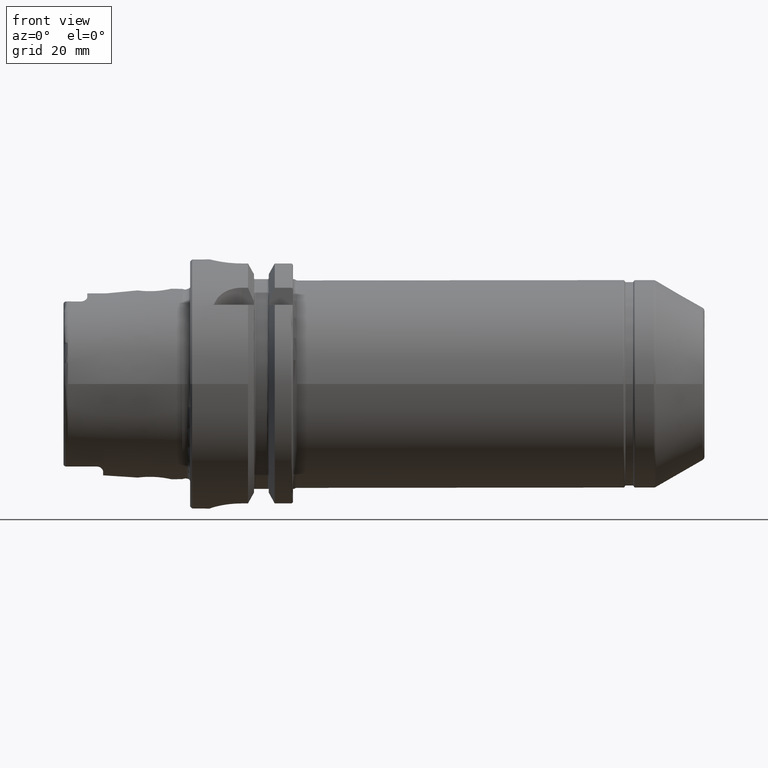
[diagram: clean part render]
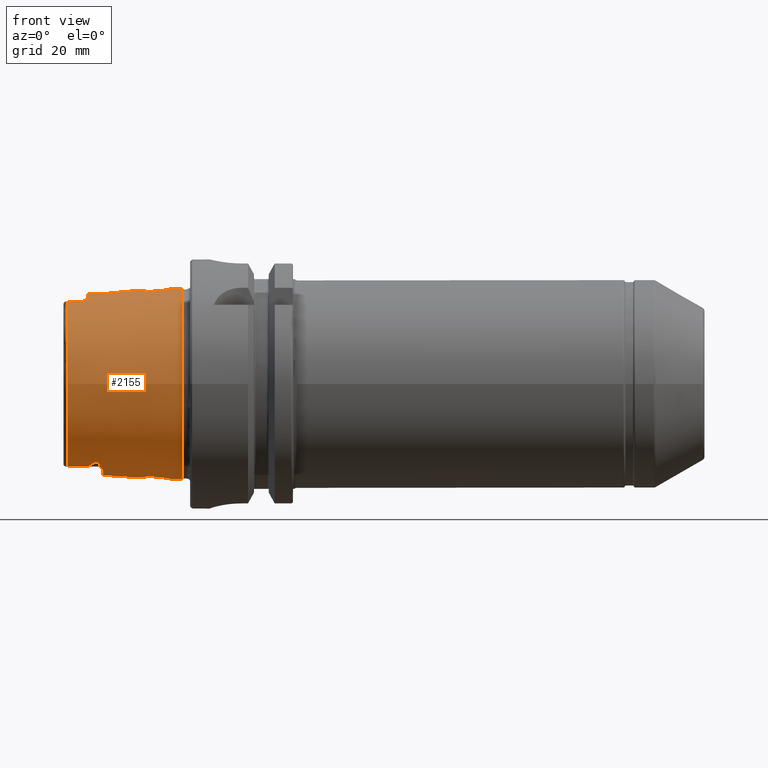
[diagram: same view with one face highlighted and labeled with its STEP entity id]
A machine part, front view. The second image highlights one B-rep face of the part: STEP entity #2155.
In plain terms, the highlighted conical surface has half-angle 2.868 deg.
Its self-contained STEP definition (entity closure, byte-faithful):
#15=(
BOUNDED_CURVE()
B_SPLINE_CURVE(2,(#3690,#3691,#3692),.UNSPECIFIED.,.F.,.F.)
B_SPLINE_CURVE_WITH_KNOTS((3,3),(0.409626932432081,0.704053423593105),
 .UNSPECIFIED.)
CURVE()
GEOMETRIC_REPRESENTATION_ITEM()
RATIONAL_B_SPLINE_CURVE((1.00336468859939,1.00336468859939,1.00162640098087))
REPRESENTATION_ITEM('')
);
#16=(
BOUNDED_CURVE()
B_SPLINE_CURVE(2,(#3757,#3758,#3759),.UNSPECIFIED.,.F.,.F.)
B_SPLINE_CURVE_WITH_KNOTS((3,3),(0.115200441271059,0.409626932432082),
 .UNSPECIFIED.)
CURVE()
GEOMETRIC_REPRESENTATION_ITEM()
RATIONAL_B_SPLINE_CURVE((1.00162640098087,1.00336468859939,1.00336468859939))
REPRESENTATION_ITEM('')
);
#43=B_SPLINE_CURVE_WITH_KNOTS('',3,(#3431,#3432,#3433,#3434,#3435,#3436,
#3437,#3438,#3439,#3440,#3441,#3442,#3443,#3444,#3445,#3446,#3447,#3448),
 .UNSPECIFIED.,.F.,.F.,(4,2,2,2,2,2,2,2,4),(1.51539778880184,1.52261182847659,
1.52982586815134,1.54425394750083,1.60399250706955,1.66373106663827,1.83461413050895,
2.00549719437962,2.0934503680651),.UNSPECIFIED.);
#45=B_SPLINE_CURVE_WITH_KNOTS('',3,(#3479,#3480,#3481,#3482,#3483,#3484,
#3485,#3486),.UNSPECIFIED.,.F.,.F.,(4,2,2,4),(1.77153596711132,1.83492838643131,
2.00584149209106,2.09371558288111),.UNSPECIFIED.);
#46=B_SPLINE_CURVE_WITH_KNOTS('',3,(#3503,#3504,#3505,#3506,#3507,#3508,
#3509,#3510),.UNSPECIFIED.,.F.,.F.,(4,2,2,4),(0.937604543168422,1.02547863395848,
1.19639173961822,1.25978415893822),.UNSPECIFIED.);
#50=B_SPLINE_CURVE_WITH_KNOTS('',3,(#3642,#3643,#3644,#3645,#3646,#3647,
#3648,#3649,#3650,#3651,#3652,#3653,#3654,#3655,#3656,#3657,#3658,#3659,
#3660,#3661,#3662),.UNSPECIFIED.,.T.,.F.,(4,1,1,1,1,1,1,1,1,1,1,1,1,1,1,
1,1,1,4),(-2.26557970640445,-2.10375258451842,-1.94192546263239,-1.86101190168937,
-1.78009834074636,-1.61827121886032,-1.45644409697429,-1.29461697508826,
-1.18673222716424,-1.07884747924022,-1.0249051052782,-0.970962731316194,
-0.755193235468151,-0.647308487544129,-0.485481365658097,-0.404567804715081,
-0.323654243772065,-0.161827121886032,0.),.UNSPECIFIED.);
#51=B_SPLINE_CURVE_WITH_KNOTS('',3,(#3671,#3672,#3673,#3674,#3675,#3676,
#3677,#3678,#3679,#3680,#3681,#3682,#3683,#3684,#3685,#3686,#3687,#3688),
 .UNSPECIFIED.,.F.,.F.,(4,2,2,2,2,2,2,2,4),(0.937345209538582,1.02529838322405,
1.19618144709472,1.36706451096539,1.42680307053412,1.48654163010284,1.50096970945234,
1.50818374912708,1.51539778880183),.UNSPECIFIED.);
#52=B_SPLINE_CURVE_WITH_KNOTS('',3,(#3694,#3695,#3696,#3697,#3698,#3699,
#3700,#3701,#3702,#3703,#3704,#3705,#3706,#3707,#3708,#3709,#3710,#3711),
 .UNSPECIFIED.,.F.,.F.,(4,2,2,2,2,2,2,2,4),(0.,0.0903555875079969,0.135533381261995,
0.180711175015994,0.191679253692351,0.19716329303053,0.202647332368709,
0.208141673454593,0.210684760739668),.UNSPECIFIED.);
#53=B_SPLINE_CURVE_WITH_KNOTS('',3,(#3713,#3714,#3715,#3716,#3717,#3718,
#3719,#3720,#3721,#3722),.UNSPECIFIED.,.F.,.F.,(4,2,2,2,4),(0.278659319230644,
0.333918541832918,0.442805459609059,0.482035165304725,0.500954004489182),
 .UNSPECIFIED.);
#54=B_SPLINE_CURVE_WITH_KNOTS('',3,(#3726,#3727,#3728,#3729,#3730,#3731,
#3732,#3733,#3734,#3735,#3736,#3737),.UNSPECIFIED.,.F.,.F.,(4,2,2,2,2,4),
(0.500954004487676,0.50386398744684,0.528331134037123,0.580812359186529,
0.712749669755937,0.726249722962502),.UNSPECIFIED.);
#55=B_SPLINE_CURVE_WITH_KNOTS('',3,(#3739,#3740,#3741,#3742,#3743,#3744,
#3745,#3746,#3747,#3748,#3749,#3750,#3751,#3752,#3753,#3754,#3755,#3756),
 .UNSPECIFIED.,.F.,.F.,(4,2,2,2,2,2,2,2,4),(0.599581967500703,0.602125054785784,
0.607619395871668,0.613103435209847,0.618587474548027,0.629555553224386,
0.674733346978385,0.719911140732385,0.810266728240384),.UNSPECIFIED.);
#56=B_SPLINE_CURVE_WITH_KNOTS('',3,(#3762,#3763,#3764,#3765,#3766,#3767,
#3768,#3769,#3770,#3771,#3772,#3773,#3774,#3775),.UNSPECIFIED.,.F.,.F.,
(4,2,2,2,2,2,4),(0.612787130114313,0.692070205833102,0.846913877835571,
0.923866042650838,0.97973233720279,1.02631946127952,1.05465853457734),
 .UNSPECIFIED.);
#57=B_SPLINE_CURVE_WITH_KNOTS('',3,(#3778,#3779,#3780,#3781,#3782,#3783,
#3784,#3785,#3786,#3787,#3788,#3789,#3790,#3791),.UNSPECIFIED.,.F.,.F.,
(4,2,2,2,2,2,4),(0.413162960284885,0.443293122422243,0.485069563612126,
0.532728756474865,0.604908335246701,0.737193690325506,0.813919818316776),
 .UNSPECIFIED.);
#58=B_SPLINE_CURVE_WITH_KNOTS('',3,(#3794,#3795,#3796,#3797,#3798,#3799,
#3800,#3801,#3802,#3803,#3804,#3805,#3806,#3807,#3808,#3809,#3810,#3811,
#3812,#3813),.UNSPECIFIED.,.T.,.F.,(4,1,1,1,1,1,1,1,1,1,1,1,1,1,1,1,1,4),
(-2.26557970640445,-2.10375258451842,-1.94192546263239,-1.78009834074636,
-1.61827121886032,-1.45644409697429,-1.37553053603127,-1.29461697508826,
-1.18673222716424,-1.07884747924022,-0.970962731316194,-0.755193235468151,
-0.647308487544129,-0.485481365658097,-0.404567804715081,-0.323654243772065,
-0.161827121886032,0.),.UNSPECIFIED.);
#103=FACE_BOUND('',#363,.T.);
#104=FACE_BOUND('',#364,.T.);
#158=CONICAL_SURFACE('',#2367,23.4974838444284,0.0500583457465973);
#233=FACE_OUTER_BOUND('',#362,.T.);
#362=EDGE_LOOP('',(#1577,#1578,#1579,#1580,#1581,#1582,#1583,#1584,#1585,
#1586,#1587,#1588,#1589,#1590,#1591,#1592,#1593,#1594,#1595,#1596));
#363=EDGE_LOOP('',(#1597));
#364=EDGE_LOOP('',(#1598));
#496=LINE('',#3667,#608);
#608=VECTOR('',#2787,23.4974838444284);
#740=CIRCLE('',#2368,24.2204308617234);
#741=CIRCLE('',#2369,22.7745368271334);
#742=CIRCLE('',#2370,23.2184268537074);
#743=CIRCLE('',#2371,22.7745368271334);
#744=CIRCLE('',#2372,23.0180260521042);
#745=CIRCLE('',#2373,22.7745368271334);
#894=VERTEX_POINT('',#3417);
#895=VERTEX_POINT('',#3430);
#901=VERTEX_POINT('',#3465);
#902=VERTEX_POINT('',#3478);
#908=VERTEX_POINT('',#3500);
#909=VERTEX_POINT('',#3502);
#912=VERTEX_POINT('',#3613);
#915=VERTEX_POINT('',#3664);
#916=VERTEX_POINT('',#3666);
#917=VERTEX_POINT('',#3668);
#918=VERTEX_POINT('',#3670);
#919=VERTEX_POINT('',#3689);
#920=VERTEX_POINT('',#3693);
#921=VERTEX_POINT('',#3712);
#922=VERTEX_POINT('',#3723);
#923=VERTEX_POINT('',#3725);
#924=VERTEX_POINT('',#3738);
#925=VERTEX_POINT('',#3761);
#926=VERTEX_POINT('',#3776);
#927=VERTEX_POINT('',#3793);
#1140=EDGE_CURVE('',#895,#894,#43,.T.);
#1150=EDGE_CURVE('',#902,#901,#45,.T.);
#1158=EDGE_CURVE('',#909,#908,#46,.T.);
#1166=EDGE_CURVE('',#912,#912,#50,.T.);
#1167=EDGE_CURVE('',#915,#915,#740,.T.);
#1168=EDGE_CURVE('',#915,#916,#496,.T.);
#1169=EDGE_CURVE('',#916,#917,#741,.T.);
#1170=EDGE_CURVE('',#917,#918,#51,.T.);
#1171=EDGE_CURVE('',#918,#919,#15,.T.);
#1172=EDGE_CURVE('',#920,#919,#52,.T.);
#1173=EDGE_CURVE('',#921,#920,#53,.T.);
#1174=EDGE_CURVE('',#921,#922,#742,.T.);
#1175=EDGE_CURVE('',#923,#922,#54,.T.);
#1176=EDGE_CURVE('',#924,#923,#55,.T.);
#1177=EDGE_CURVE('',#924,#895,#16,.T.);
#1178=EDGE_CURVE('',#894,#909,#743,.T.);
#1179=EDGE_CURVE('',#925,#908,#56,.T.);
#1180=EDGE_CURVE('',#925,#926,#744,.T.);
#1181=EDGE_CURVE('',#902,#926,#57,.T.);
#1182=EDGE_CURVE('',#901,#916,#745,.T.);
#1183=EDGE_CURVE('',#927,#927,#58,.T.);
#1577=ORIENTED_EDGE('',*,*,#1167,.F.);
#1578=ORIENTED_EDGE('',*,*,#1168,.T.);
#1579=ORIENTED_EDGE('',*,*,#1169,.T.);
#1580=ORIENTED_EDGE('',*,*,#1170,.T.);
#1581=ORIENTED_EDGE('',*,*,#1171,.T.);
#1582=ORIENTED_EDGE('',*,*,#1172,.F.);
#1583=ORIENTED_EDGE('',*,*,#1173,.F.);
#1584=ORIENTED_EDGE('',*,*,#1174,.T.);
#1585=ORIENTED_EDGE('',*,*,#1175,.F.);
#1586=ORIENTED_EDGE('',*,*,#1176,.F.);
#1587=ORIENTED_EDGE('',*,*,#1177,.T.);
#1588=ORIENTED_EDGE('',*,*,#1140,.T.);
#1589=ORIENTED_EDGE('',*,*,#1178,.T.);
#1590=ORIENTED_EDGE('',*,*,#1158,.T.);
#1591=ORIENTED_EDGE('',*,*,#1179,.F.);
#1592=ORIENTED_EDGE('',*,*,#1180,.T.);
#1593=ORIENTED_EDGE('',*,*,#1181,.F.);
#1594=ORIENTED_EDGE('',*,*,#1150,.T.);
#1595=ORIENTED_EDGE('',*,*,#1182,.T.);
#1596=ORIENTED_EDGE('',*,*,#1168,.F.);
#1597=ORIENTED_EDGE('',*,*,#1183,.F.);
#1598=ORIENTED_EDGE('',*,*,#1166,.F.);
#2155=ADVANCED_FACE('',(#233,#103,#104),#158,.T.);
#2367=AXIS2_PLACEMENT_3D('',#3663,#2783,#2784);
#2368=AXIS2_PLACEMENT_3D('',#3665,#2785,#2786);
#2369=AXIS2_PLACEMENT_3D('',#3669,#2788,#2789);
#2370=AXIS2_PLACEMENT_3D('',#3724,#2790,#2791);
#2371=AXIS2_PLACEMENT_3D('',#3760,#2792,#2793);
#2372=AXIS2_PLACEMENT_3D('',#3777,#2794,#2795);
#2373=AXIS2_PLACEMENT_3D('',#3792,#2796,#2797);
#2783=DIRECTION('center_axis',(1.,0.,0.));
#2784=DIRECTION('ref_axis',(0.,1.,0.));
#2785=DIRECTION('center_axis',(1.,0.,0.));
#2786=DIRECTION('ref_axis',(0.,0.,-1.));
#2787=DIRECTION('',(-0.998747342623037,0.0500374420151821,6.1278193201414E-18));
#2788=DIRECTION('center_axis',(1.,0.,0.));
#2789=DIRECTION('ref_axis',(0.,0.,-1.));
#2790=DIRECTION('center_axis',(1.,0.,0.));
#2791=DIRECTION('ref_axis',(0.,1.,0.));
#2792=DIRECTION('center_axis',(1.,0.,0.));
#2793=DIRECTION('ref_axis',(0.,0.,-1.));
#2794=DIRECTION('center_axis',(1.,0.,0.));
#2795=DIRECTION('ref_axis',(0.,1.,0.));
#2796=DIRECTION('center_axis',(1.,0.,0.));
#2797=DIRECTION('ref_axis',(0.,0.,-1.));
#3417=CARTESIAN_POINT('',(-30.8600449304182,9.1175788960984,-20.8698175067219));
#3430=CARTESIAN_POINT('',(-25.0978148584663,10.4556386714692,-20.5570425901345));
#3431=CARTESIAN_POINT('Ctrl Pts',(-25.0978148584663,10.4556386714692,-20.5570425901345));
#3432=CARTESIAN_POINT('Ctrl Pts',(-25.0978148584663,10.434204936409,-20.5679441285336));
#3433=CARTESIAN_POINT('Ctrl Pts',(-25.1030756340098,10.4135952575897,-20.5780886428205));
#3434=CARTESIAN_POINT('Ctrl Pts',(-25.1212840412595,10.3742534446523,-20.5969290505833));
#3435=CARTESIAN_POINT('Ctrl Pts',(-25.1342239230183,10.3555186194877,-20.605626813756));
#3436=CARTESIAN_POINT('Ctrl Pts',(-25.1803732229877,10.3024924958122,-20.6296329719333));
#3437=CARTESIAN_POINT('Ctrl Pts',(-25.2208246412482,10.2713306216733,-20.6428847988051));
#3438=CARTESIAN_POINT('Ctrl Pts',(-25.4220827984543,10.138547720478,-20.6974983203461));
#3439=CARTESIAN_POINT('Ctrl Pts',(-25.6226314158802,10.0671936374525,-20.7209199758995));
#3440=CARTESIAN_POINT('Ctrl Pts',(-26.0321916388999,9.93536599911188,-20.7617058242075));
#3441=CARTESIAN_POINT('Ctrl Pts',(-26.2430784477608,9.8799536310347,-20.7763753921414));
#3442=CARTESIAN_POINT('Ctrl Pts',(-26.9889879780946,9.69930871486834,-20.8204848534175));
#3443=CARTESIAN_POINT('Ctrl Pts',(-27.5600080230791,9.59491882494626,-20.8370744460606));
#3444=CARTESIAN_POINT('Ctrl Pts',(-28.7253632733501,9.40260250516234,-20.8605355436413));
#3445=CARTESIAN_POINT('Ctrl Pts',(-29.3200764392133,9.31683719872073,-20.8662835753638));
#3446=CARTESIAN_POINT('Ctrl Pts',(-30.2333885582946,9.19553638844306,-20.8699331931734));
#3447=CARTESIAN_POINT('Ctrl Pts',(-30.5458909643235,9.15590567779843,-20.8702489912062));
#3448=CARTESIAN_POINT('Ctrl Pts',(-30.8600449304182,9.11757889609839,-20.8698175067219));
#3465=CARTESIAN_POINT('',(-30.8600449304182,-9.1175788960984,20.8698175067219));
#3478=CARTESIAN_POINT('',(-27.5000000000755,-9.61067758640857,20.8329168403914));
#3479=CARTESIAN_POINT('Ctrl Pts',(-27.500000000078,-9.61067758642201,20.8329168403892));
#3480=CARTESIAN_POINT('Ctrl Pts',(-27.7125737548958,-9.57148784129481,20.8392673030342));
#3481=CARTESIAN_POINT('Ctrl Pts',(-27.9270578144772,-9.53434241390281,20.8444654011212));
#3482=CARTESIAN_POINT('Ctrl Pts',(-28.7259960474271,-9.40250589525003,20.8605443506117));
#3483=CARTESIAN_POINT('Ctrl Pts',(-29.3208153495341,-9.3167323629879,20.8662898636256));
#3484=CARTESIAN_POINT('Ctrl Pts',(-30.2339565561897,-9.19546438357122,20.8699337533607));
#3485=CARTESIAN_POINT('Ctrl Pts',(-30.5461763429502,-9.15587086160794,20.8702485992441));
#3486=CARTESIAN_POINT('Ctrl Pts',(-30.8600449304182,-9.11757889609839,20.8698175067219));
#3500=CARTESIAN_POINT('',(-27.5000000000755,9.61067758640857,20.8329168403914));
#3502=CARTESIAN_POINT('',(-30.8600449304182,9.1175788960984,20.8698175067219));
#3503=CARTESIAN_POINT('Ctrl Pts',(-30.8600449304182,9.11757889609839,20.8698175067219));
#3504=CARTESIAN_POINT('Ctrl Pts',(-30.5461763429502,9.15587086160794,20.8702485992441));
#3505=CARTESIAN_POINT('Ctrl Pts',(-30.2339565561898,9.1954643835712,20.8699337533607));
#3506=CARTESIAN_POINT('Ctrl Pts',(-29.3208153495341,9.31673236298789,20.8662898636256));
#3507=CARTESIAN_POINT('Ctrl Pts',(-28.7259960474271,9.40250589525004,20.8605443506117));
#3508=CARTESIAN_POINT('Ctrl Pts',(-27.9270578144772,9.53434241390281,20.8444654011213));
#3509=CARTESIAN_POINT('Ctrl Pts',(-27.7125737548958,9.57148784129481,20.8392673030342));
#3510=CARTESIAN_POINT('Ctrl Pts',(-27.500000000078,9.61067758642201,20.8329168403892));
#3613=CARTESIAN_POINT('',(-9.02925407423461,4.24282684078987,-23.4881339907642));
#3642=CARTESIAN_POINT('Ctrl Pts',(-9.02925407423461,4.24282684078987,-23.4881339907642));
#3643=CARTESIAN_POINT('Ctrl Pts',(-8.41794937729803,4.24763962021184,-23.5183867686952));
#3644=CARTESIAN_POINT('Ctrl Pts',(-7.09732684210524,3.96167042797061,-23.6399991166518));
#3645=CARTESIAN_POINT('Ctrl Pts',(-5.85862556428085,2.97381592636213,-23.8514770065909));
#3646=CARTESIAN_POINT('Ctrl Pts',(-5.16091834655909,1.90904489936624,-23.9915213036756));
#3647=CARTESIAN_POINT('Ctrl Pts',(-4.7192295801593,0.668721272737722,-24.0894047094142));
#3648=CARTESIAN_POINT('Ctrl Pts',(-4.69847323329922,-0.89943965232534,-24.0935544797084));
#3649=CARTESIAN_POINT('Ctrl Pts',(-5.55540783240537,-2.73292283801133,-23.9044866287245));
#3650=CARTESIAN_POINT('Ctrl Pts',(-6.84099834624704,-3.76948663147273,-23.6816666687589));
#3651=CARTESIAN_POINT('Ctrl Pts',(-8.32233390618421,-4.25559455937192,-23.5222287213409));
#3652=CARTESIAN_POINT('Ctrl Pts',(-9.34887268913082,-4.25610778302827,-23.4687535956096));
#3653=CARTESIAN_POINT('Ctrl Pts',(-10.1915677140488,-4.08658685046146,-23.4566376659774));
#3654=CARTESIAN_POINT('Ctrl Pts',(-11.420207255051,-3.61575321059654,-23.4734883841045));
#3655=CARTESIAN_POINT('Ctrl Pts',(-12.5283545007694,-2.6317274185749,-23.5686081216677));
#3656=CARTESIAN_POINT('Ctrl Pts',(-13.2832721623887,-0.775397661242597,
-23.6605550548532));
#3657=CARTESIAN_POINT('Ctrl Pts',(-13.2938327740737,0.570583952086489,-23.6623781319302));
#3658=CARTESIAN_POINT('Ctrl Pts',(-12.8809642347665,1.82501152311243,-23.6106605418293));
#3659=CARTESIAN_POINT('Ctrl Pts',(-12.1975836305622,2.91182012527324,-23.5396565922848));
#3660=CARTESIAN_POINT('Ctrl Pts',(-10.9677588719499,3.92910839902513,-23.4490545719123));
#3661=CARTESIAN_POINT('Ctrl Pts',(-9.64055877117116,4.23801406136791,-23.4578812128331));
#3662=CARTESIAN_POINT('Ctrl Pts',(-9.02925407423461,4.24282684078987,-23.4881339907642));
#3663=CARTESIAN_POINT('Origin',(-16.4300224652091,0.,0.));
#3664=CARTESIAN_POINT('',(-2.,-24.2204308617234,-2.96614731287794E-15));
#3665=CARTESIAN_POINT('Origin',(-2.,0.,0.));
#3666=CARTESIAN_POINT('',(-30.8600449304182,-22.7745368271334,-2.78907636274124E-15));
#3667=CARTESIAN_POINT('',(-16.4300224652091,-23.4974838444284,-2.87761183780959E-15));
#3668=CARTESIAN_POINT('',(-30.8600449304182,-9.1175788960984,-20.8698175067219));
#3669=CARTESIAN_POINT('Origin',(-30.8600449304182,0.,0.));
#3670=CARTESIAN_POINT('',(-25.0978148584663,-10.4556386714692,-20.5570425901345));
#3671=CARTESIAN_POINT('Ctrl Pts',(-30.8600449304182,-9.11757889609839,-20.8698175067219));
#3672=CARTESIAN_POINT('Ctrl Pts',(-30.5458909643235,-9.15590567779842,-20.8702489912062));
#3673=CARTESIAN_POINT('Ctrl Pts',(-30.2333885582947,-9.19553638844306,-20.8699331931734));
#3674=CARTESIAN_POINT('Ctrl Pts',(-29.3200764392134,-9.31683719872071,-20.8662835753638));
#3675=CARTESIAN_POINT('Ctrl Pts',(-28.7253632733503,-9.40260250516231,-20.8605355436413));
#3676=CARTESIAN_POINT('Ctrl Pts',(-27.5600080230793,-9.59491882494623,-20.8370744460606));
#3677=CARTESIAN_POINT('Ctrl Pts',(-26.9889879780948,-9.69930871486833,-20.8204848534175));
#3678=CARTESIAN_POINT('Ctrl Pts',(-26.243078447761,-9.87995363103469,-20.7763753921414));
#3679=CARTESIAN_POINT('Ctrl Pts',(-26.0321916389,-9.93536599911181,-20.7617058242075));
#3680=CARTESIAN_POINT('Ctrl Pts',(-25.6226314158803,-10.0671936374524,-20.7209199758996));
#3681=CARTESIAN_POINT('Ctrl Pts',(-25.4220827984544,-10.138547720478,-20.6974983203461));
#3682=CARTESIAN_POINT('Ctrl Pts',(-25.2208246412483,-10.2713306216733,-20.6428847988051));
#3683=CARTESIAN_POINT('Ctrl Pts',(-25.1803732229877,-10.3024924958121,-20.6296329719333));
#3684=CARTESIAN_POINT('Ctrl Pts',(-25.1342239230183,-10.3555186194877,-20.6056268137561));
#3685=CARTESIAN_POINT('Ctrl Pts',(-25.1212840412597,-10.3742534446523,-20.5969290505833));
#3686=CARTESIAN_POINT('Ctrl Pts',(-25.10307563401,-10.4135952575897,-20.5780886428205));
#3687=CARTESIAN_POINT('Ctrl Pts',(-25.0978148584663,-10.434204936409,-20.5679441285336));
#3688=CARTESIAN_POINT('Ctrl Pts',(-25.0978148584663,-10.4556386714692,-20.5570425901345));
#3689=CARTESIAN_POINT('',(-23.5,-12.1698923613067,-19.6851459107563));
#3690=CARTESIAN_POINT('Ctrl Pts',(-25.0978148584663,-10.4556386714692,-20.5570425901345));
#3691=CARTESIAN_POINT('Ctrl Pts',(-25.0978148584663,-11.3112805797553,-20.1218495128239));
#3692=CARTESIAN_POINT('Ctrl Pts',(-23.5,-12.1698923613067,-19.6851459107563));
#3693=CARTESIAN_POINT('',(-22.9409864229987,-10.5046262057925,-20.6533579718259));
#3694=CARTESIAN_POINT('Ctrl Pts',(-22.9409864229987,-10.5046262057925,-20.6533579718259));
#3695=CARTESIAN_POINT('Ctrl Pts',(-22.9409864229987,-10.7730829666602,-20.516816595398));
#3696=CARTESIAN_POINT('Ctrl Pts',(-22.9574206817668,-11.0623666606509,-20.3616089931375));
#3697=CARTESIAN_POINT('Ctrl Pts',(-23.0214299513488,-11.4761009466796,-20.1257517714531));
#3698=CARTESIAN_POINT('Ctrl Pts',(-23.0491283200772,-11.6099871059181,-20.0471312410654));
#3699=CARTESIAN_POINT('Ctrl Pts',(-23.1253497318037,-11.8635092488451,-19.8937049027563));
#3700=CARTESIAN_POINT('Ctrl Pts',(-23.1681553584466,-11.9845149642791,-19.8183788237048));
#3701=CARTESIAN_POINT('Ctrl Pts',(-23.2720205567489,-12.1145084587468,-19.7327054731899));
#3702=CARTESIAN_POINT('Ctrl Pts',(-23.2970638659452,-12.1405120406692,-19.7152346163683));
#3703=CARTESIAN_POINT('Ctrl Pts',(-23.340824213029,-12.1694983830269,-19.6947680043585));
#3704=CARTESIAN_POINT('Ctrl Pts',(-23.3564336502031,-12.1775072041959,-19.6888951705931));
#3705=CARTESIAN_POINT('Ctrl Pts',(-23.3894992563298,-12.1884299822762,-19.6801867490419));
#3706=CARTESIAN_POINT('Ctrl Pts',(-23.4069516148396,-12.191352087042,-19.6773469156348));
#3707=CARTESIAN_POINT('Ctrl Pts',(-23.4435003757557,-12.1903876993059,-19.675790353909));
#3708=CARTESIAN_POINT('Ctrl Pts',(-23.4609883159786,-12.1865341044229,-19.6771480362853));
#3709=CARTESIAN_POINT('Ctrl Pts',(-23.4852443648865,-12.1772664781571,-19.6814547071094));
#3710=CARTESIAN_POINT('Ctrl Pts',(-23.4927247382132,-12.1738018414638,-19.6831574869965));
#3711=CARTESIAN_POINT('Ctrl Pts',(-23.5,-12.1698923613067,-19.6851459107563));
#3712=CARTESIAN_POINT('',(-22.,-7.4031250016059,-22.0065691504051));
#3713=CARTESIAN_POINT('Ctrl Pts',(-22.,-7.4031250016064,-22.0065691504049));
#3714=CARTESIAN_POINT('Ctrl Pts',(-22.,-7.64154328791244,-21.9263639914758));
#3715=CARTESIAN_POINT('Ctrl Pts',(-22.0282316966018,-7.93106690411137,-21.8234540350138));
#3716=CARTESIAN_POINT('Ctrl Pts',(-22.2899989017396,-8.94727995671646,-21.421774019244));
#3717=CARTESIAN_POINT('Ctrl Pts',(-22.60775210997,-9.49253651928731,-21.1610368486918));
#3718=CARTESIAN_POINT('Ctrl Pts',(-22.8524785496019,-10.0580168739411,-20.8800894739587));
#3719=CARTESIAN_POINT('Ctrl Pts',(-22.8997008986804,-10.1907353571143,-20.8128334005565));
#3720=CARTESIAN_POINT('Ctrl Pts',(-22.9350020039233,-10.381785274935,-20.7158310407179));
#3721=CARTESIAN_POINT('Ctrl Pts',(-22.9409864229987,-10.4428555441716,-20.6847755123391));
#3722=CARTESIAN_POINT('Ctrl Pts',(-22.9409864229987,-10.5046262057925,-20.6533579718259));
#3723=CARTESIAN_POINT('',(-22.,7.4031250016059,-22.0065691504051));
#3724=CARTESIAN_POINT('Origin',(-22.,0.,0.));
#3725=CARTESIAN_POINT('',(-22.9409864229987,10.5046262057925,-20.6533579718259));
#3726=CARTESIAN_POINT('Ctrl Pts',(-22.9409864229987,10.5046262057925,-20.6533579718259));
#3727=CARTESIAN_POINT('Ctrl Pts',(-22.9409864229987,10.4951250111927,-20.6581904304467));
#3728=CARTESIAN_POINT('Ctrl Pts',(-22.9408450644905,10.4856070684351,-20.6630311043921));
#3729=CARTESIAN_POINT('Ctrl Pts',(-22.9381719760295,10.3958439048842,-20.7086800932502));
#3730=CARTESIAN_POINT('Ctrl Pts',(-22.9258072553349,10.3185989460598,-20.747952822378));
#3731=CARTESIAN_POINT('Ctrl Pts',(-22.8649803787077,10.0769327863764,-20.8704196245159));
#3732=CARTESIAN_POINT('Ctrl Pts',(-22.7887679321626,9.90306802919886,-20.9581178536208));
#3733=CARTESIAN_POINT('Ctrl Pts',(-22.4484945404157,9.18505116717875,-21.3075925571443));
#3734=CARTESIAN_POINT('Ctrl Pts',(-22.0746753976002,8.47121172659649,-21.631485700585));
#3735=CARTESIAN_POINT('Ctrl Pts',(-22.0031617045067,7.56447021316982,-21.9516456669287));
#3736=CARTESIAN_POINT('Ctrl Pts',(-22.,7.48262387019776,-21.9798253150689));
#3737=CARTESIAN_POINT('Ctrl Pts',(-22.,7.40312500160694,-22.0065691504047));
#3738=CARTESIAN_POINT('',(-23.5,12.1698923613067,-19.6851459107563));
#3739=CARTESIAN_POINT('Ctrl Pts',(-23.5,12.1698923613067,-19.6851459107563));
#3740=CARTESIAN_POINT('Ctrl Pts',(-23.4927247382132,12.1738018414639,-19.6831574869965));
#3741=CARTESIAN_POINT('Ctrl Pts',(-23.4852443648865,12.1772664781571,-19.6814547071094));
#3742=CARTESIAN_POINT('Ctrl Pts',(-23.4609883159786,12.1865341044229,-19.6771480362853));
#3743=CARTESIAN_POINT('Ctrl Pts',(-23.4435003757557,12.190387699306,-19.6757903539089));
#3744=CARTESIAN_POINT('Ctrl Pts',(-23.4069516148396,12.1913520870421,-19.6773469156348));
#3745=CARTESIAN_POINT('Ctrl Pts',(-23.3894992563298,12.1884299822762,-19.6801867490419));
#3746=CARTESIAN_POINT('Ctrl Pts',(-23.3564336502031,12.1775072041959,-19.688895170593));
#3747=CARTESIAN_POINT('Ctrl Pts',(-23.340824213029,12.169498383027,-19.6947680043585));
#3748=CARTESIAN_POINT('Ctrl Pts',(-23.2970638659452,12.1405120406693,-19.7152346163683));
#3749=CARTESIAN_POINT('Ctrl Pts',(-23.2720205567489,12.1145084587468,-19.7327054731899));
#3750=CARTESIAN_POINT('Ctrl Pts',(-23.1681553584466,11.9845149642791,-19.8183788237047));
#3751=CARTESIAN_POINT('Ctrl Pts',(-23.1253497318037,11.8635092488451,-19.8937049027563));
#3752=CARTESIAN_POINT('Ctrl Pts',(-23.0491283200772,11.6099871059182,-20.0471312410654));
#3753=CARTESIAN_POINT('Ctrl Pts',(-23.0214299513488,11.4761009466796,-20.1257517714531));
#3754=CARTESIAN_POINT('Ctrl Pts',(-22.9574206817668,11.0623666606509,-20.3616089931375));
#3755=CARTESIAN_POINT('Ctrl Pts',(-22.9409864229987,10.7730829666602,-20.516816595398));
#3756=CARTESIAN_POINT('Ctrl Pts',(-22.9409864229987,10.5046262057925,-20.6533579718259));
#3757=CARTESIAN_POINT('Ctrl Pts',(-23.5,12.1698923613067,-19.6851459107563));
#3758=CARTESIAN_POINT('Ctrl Pts',(-25.0978148584663,11.3112805797553,-20.1218495128239));
#3759=CARTESIAN_POINT('Ctrl Pts',(-25.0978148584662,10.4556386714692,-20.5570425901345));
#3760=CARTESIAN_POINT('Origin',(-30.8600449304182,0.,0.));
#3761=CARTESIAN_POINT('',(-26.,7.14127219004964,21.8822246319466));
#3762=CARTESIAN_POINT('Ctrl Pts',(-26.,7.14127219004961,21.8822246319466));
#3763=CARTESIAN_POINT('Ctrl Pts',(-26.,7.38735946023371,21.801913959314));
#3764=CARTESIAN_POINT('Ctrl Pts',(-26.033972788753,7.63482296419265,21.7146832850108));
#3765=CARTESIAN_POINT('Ctrl Pts',(-26.2194423861809,8.34889404999889,21.4446815988103));
#3766=CARTESIAN_POINT('Ctrl Pts',(-26.4428793547878,8.75952114583654,21.2645357982171));
#3767=CARTESIAN_POINT('Ctrl Pts',(-26.7590254549197,9.19092879202869,21.0625769757814));
#3768=CARTESIAN_POINT('Ctrl Pts',(-26.8729708291721,9.32104212441475,20.9987774802421));
#3769=CARTESIAN_POINT('Ctrl Pts',(-27.0716948778125,9.49280512119961,20.9106159819251));
#3770=CARTESIAN_POINT('Ctrl Pts',(-27.144806553738,9.53932652154805,20.8852782118319));
#3771=CARTESIAN_POINT('Ctrl Pts',(-27.2637975599135,9.59417850538166,20.8535668796639));
#3772=CARTESIAN_POINT('Ctrl Pts',(-27.322222387454,9.61219549867679,20.8420263003947));
#3773=CARTESIAN_POINT('Ctrl Pts',(-27.4236635149584,9.61988157707407,20.8328813745288));
#3774=CARTESIAN_POINT('Ctrl Pts',(-27.4617925463603,9.61772144927266,20.8317754247499));
#3775=CARTESIAN_POINT('Ctrl Pts',(-27.5000000000779,9.61067758642203,20.8329168403892));
#3776=CARTESIAN_POINT('',(-26.,-7.14127219004964,21.8822246319466));
#3777=CARTESIAN_POINT('Origin',(-26.,0.,0.));
#3778=CARTESIAN_POINT('Ctrl Pts',(-27.500000000078,-9.610677586422,20.8329168403892));
#3779=CARTESIAN_POINT('Ctrl Pts',(-27.4634308025005,-9.61741942308555,20.8318243662782));
#3780=CARTESIAN_POINT('Ctrl Pts',(-27.4260889661871,-9.61985292316152,20.8327607188551));
#3781=CARTESIAN_POINT('Ctrl Pts',(-27.3343377981765,-9.61339298685805,20.8408051456548));
#3782=CARTESIAN_POINT('Ctrl Pts',(-27.2828394544385,-9.59996378018902,20.8498476845684));
#3783=CARTESIAN_POINT('Ctrl Pts',(-27.1765640574038,-9.55615724159004,20.8758218933212));
#3784=CARTESIAN_POINT('Ctrl Pts',(-27.111584300389,-9.51976030908576,20.8961199655304));
#3785=CARTESIAN_POINT('Ctrl Pts',(-26.9153060284285,-9.36478934458731,20.9769473005223));
#3786=CARTESIAN_POINT('Ctrl Pts',(-26.7955937204007,-9.23492374831594,21.0413520243865));
#3787=CARTESIAN_POINT('Ctrl Pts',(-26.4809422997755,-8.82026009617074,21.2370375105362));
#3788=CARTESIAN_POINT('Ctrl Pts',(-26.2539798154924,-8.42841535117176,21.4117405279022));
#3789=CARTESIAN_POINT('Ctrl Pts',(-26.0395031937781,-7.68065048502185,21.6986739773255));
#3790=CARTESIAN_POINT('Ctrl Pts',(-26.,-7.40668123592282,21.7956082905937));
#3791=CARTESIAN_POINT('Ctrl Pts',(-26.,-7.14127219004964,21.8822246319466));
#3792=CARTESIAN_POINT('Origin',(-30.8600449304182,0.,0.));
#3793=CARTESIAN_POINT('',(-9.0292540742346,4.24282684078987,23.4881339907642));
#3794=CARTESIAN_POINT('Ctrl Pts',(-9.0292540742346,4.24282684078987,23.4881339907642));
#3795=CARTESIAN_POINT('Ctrl Pts',(-9.64055877117116,4.23801406136791,23.4578812128331));
#3796=CARTESIAN_POINT('Ctrl Pts',(-10.9638730408259,3.9179106610358,23.4490004091406));
#3797=CARTESIAN_POINT('Ctrl Pts',(-12.4526262699356,2.72858679704118,23.5583200576491));
#3798=CARTESIAN_POINT('Ctrl Pts',(-13.2979994443229,0.897319571652653,23.6626290479033));
#3799=CARTESIAN_POINT('Ctrl Pts',(-13.2816532621822,-0.989914262387046,
23.6604543947658));
#3800=CARTESIAN_POINT('Ctrl Pts',(-12.5283475509394,-2.5126406940463,23.5683027954165));
#3801=CARTESIAN_POINT('Ctrl Pts',(-11.644644056388,-3.36168995288758,23.5000429155352));
#3802=CARTESIAN_POINT('Ctrl Pts',(-10.7211638191248,-3.94108956594417,23.4566895241693));
#3803=CARTESIAN_POINT('Ctrl Pts',(-9.5521895652502,-4.26473162662384,23.4572260144777));
#3804=CARTESIAN_POINT('Ctrl Pts',(-8.32320534640719,-4.25325948558034,23.5226080715555));
#3805=CARTESIAN_POINT('Ctrl Pts',(-6.63489792710575,-3.70316169352032,23.7041145541078));
#3806=CARTESIAN_POINT('Ctrl Pts',(-5.41440976031321,-2.55125573233756,23.9362004351798));
#3807=CARTESIAN_POINT('Ctrl Pts',(-4.7000748090091,-0.684877735486038,24.0933895661358));
#3808=CARTESIAN_POINT('Ctrl Pts',(-4.71970772693147,0.665159656526803,24.0893124072651));
#3809=CARTESIAN_POINT('Ctrl Pts',(-5.15905183263974,1.91098326290444,23.9917942104486));
#3810=CARTESIAN_POINT('Ctrl Pts',(-5.85767811305676,2.97386590658898,23.8516162416426));
#3811=CARTESIAN_POINT('Ctrl Pts',(-7.09677486505754,3.96242760844406,23.6400830913262));
#3812=CARTESIAN_POINT('Ctrl Pts',(-8.41794937729803,4.24763962021184,23.5183867686952));
#3813=CARTESIAN_POINT('Ctrl Pts',(-9.0292540742346,4.24282684078988,23.4881339907642));